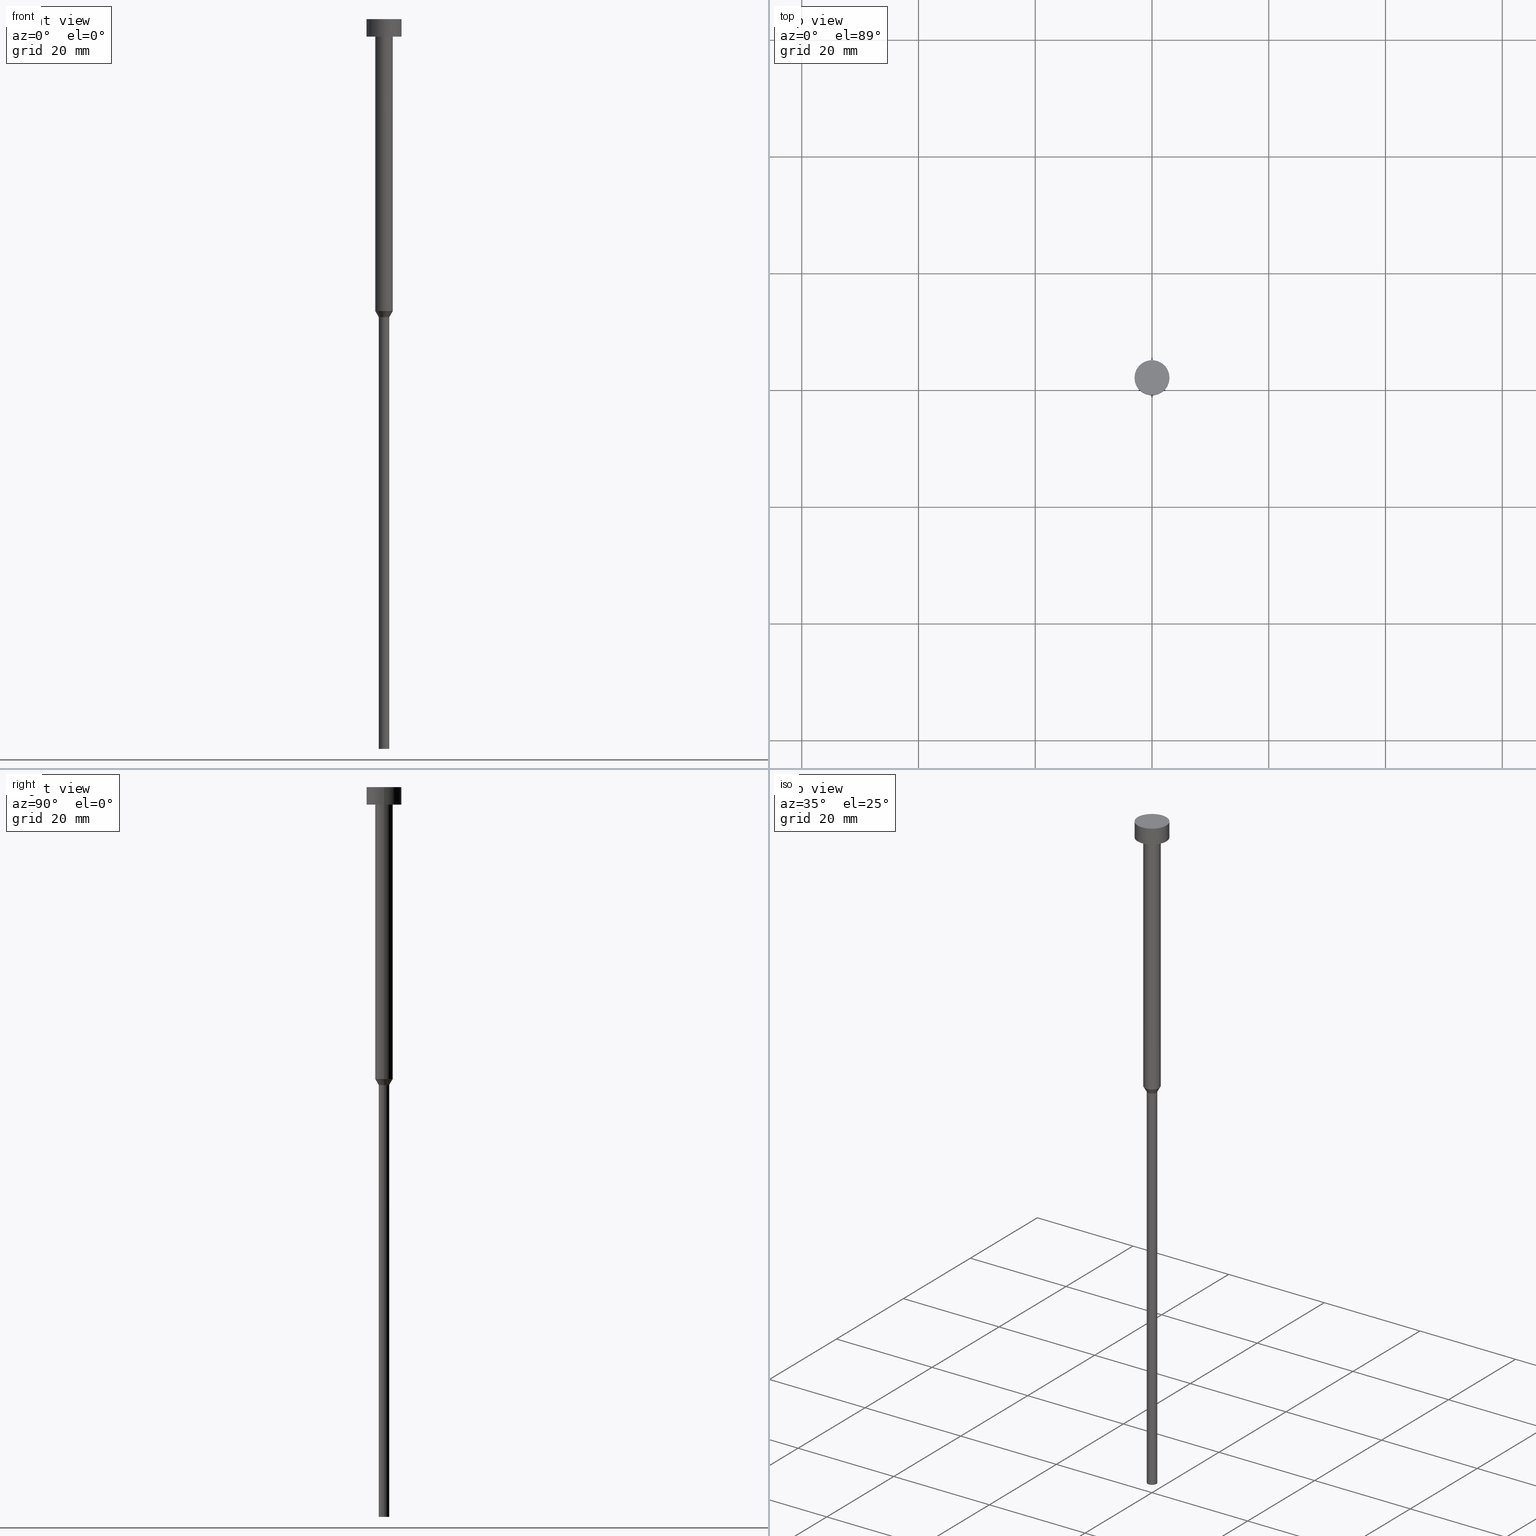
[diagram: canonical four-view strip — front | top / right | iso, engineering-drawing reading convention]
A machine part, canonical four-view strip (front | top / right | iso — engineering-drawing reading convention). The complete STEP part file that produces these views, byte-faithful:
ISO-10303-21;
HEADER;
FILE_DESCRIPTION (( 'STEP AP203' ),
    '1' );
FILE_NAME ('a91e.STEP',
    '2023-02-13T10:04:14',
    ( '' ),
    ( '' ),
    'SwSTEP 2.0',
    'SolidWorks 2019',
    '' );
FILE_SCHEMA (( 'CONFIG_CONTROL_DESIGN' ));
ENDSEC;

DATA;
#1 = EDGE_LOOP ( 'NONE', ( #320, #274 ) ) ;
#2 = DIRECTION ( 'NONE',  ( 0.000000000000000000, -0.000000000000000000, 1.000000000000000000 ) ) ;
#3 = DIRECTION ( 'NONE',  ( 0.5000000000000002220, 0.000000000000000000, 0.8660254037844384856 ) ) ;
#4 = VERTEX_POINT ( 'NONE', #42 ) ;
#5 = EDGE_CURVE ( 'NONE', #187, #23, #146, .T. ) ;
#6 = CIRCLE ( 'NONE', #45, 0.9000000000000000222 ) ;
#7 = AXIS2_PLACEMENT_3D ( 'NONE', #168, #227, #299 ) ;
#8 = DIRECTION ( 'NONE',  ( 0.000000000000000000, 0.000000000000000000, -1.000000000000000000 ) ) ;
#9 = EDGE_CURVE ( 'NONE', #71, #23, #315, .T. ) ;
#10 = ORGANIZATION ( 'NEUR�EN�', 'NEUR�EN�', '' ) ;
#11 = PERSON_AND_ORGANIZATION_ROLE ( 'design_supplier' ) ;
#12 = CC_DESIGN_PERSON_AND_ORGANIZATION_ASSIGNMENT ( #325, #189, ( #43 ) ) ;
#13 = VERTEX_POINT ( 'NONE', #219 ) ;
#14 = ORIENTED_EDGE ( 'NONE', *, *, #95, .F. ) ;
#15 = CARTESIAN_POINT ( 'NONE',  ( 0.000000000000000000, 0.000000000000000000, -3.000000000000000888 ) ) ;
#16 = ADVANCED_BREP_SHAPE_REPRESENTATION ( 'a91e', ( #64, #341 ), #183 ) ;
#17 = EDGE_LOOP ( 'NONE', ( #46, #204, #164, #336 ) ) ;
#18 = APPROVAL_PERSON_ORGANIZATION ( #166, #130, #66 ) ;
#19 = ORIENTED_EDGE ( 'NONE', *, *, #95, .T. ) ;
#20 = PERSON_AND_ORGANIZATION ( #247, #10 ) ;
#21 = CARTESIAN_POINT ( 'NONE',  ( 0.000000000000000000, 0.000000000000000000, 0.000000000000000000 ) ) ;
#22 = CARTESIAN_POINT ( 'NONE',  ( -0.9000000000000000222, 1.102182119232617788E-16, -51.03923048454132783 ) ) ;
#23 = VERTEX_POINT ( 'NONE', #190 ) ;
#24 = CARTESIAN_POINT ( 'NONE',  ( 0.000000000000000000, 0.000000000000000000, -50.00000000000000000 ) ) ;
#25 = FACE_OUTER_BOUND ( 'NONE', #207, .T. ) ;
#26 = VERTEX_POINT ( 'NONE', #136 ) ;
#27 = FACE_OUTER_BOUND ( 'NONE', #115, .T. ) ;
#28 = CARTESIAN_POINT ( 'NONE',  ( 0.000000000000000000, 0.000000000000000000, 0.000000000000000000 ) ) ;
#29 = COORDINATED_UNIVERSAL_TIME_OFFSET ( 1, 0, .AHEAD. ) ;
#30 = CIRCLE ( 'NONE', #261, 3.000000000000000000 ) ;
#31 = COORDINATED_UNIVERSAL_TIME_OFFSET ( 1, 0, .AHEAD. ) ;
#32 = CYLINDRICAL_SURFACE ( 'NONE', #7, 0.9000000000000000222 ) ;
#33 = SECURITY_CLASSIFICATION_LEVEL ( 'unclassified' ) ;
#34 = ORIENTED_EDGE ( 'NONE', *, *, #56, .F. ) ;
#35 = DIRECTION ( 'NONE',  ( 1.000000000000000000, 0.000000000000000000, 0.000000000000000000 ) ) ;
#36 = CALENDAR_DATE ( 2023, 13, 2 ) ;
#37 = LOCAL_TIME ( 11, 4, 14.00000000000000000, #298 ) ;
#38 = ADVANCED_FACE ( 'NONE', ( #158 ), #328, .T. ) ;
#39 = LINE ( 'NONE', #65, #124 ) ;
#40 = APPLICATION_CONTEXT ( 'configuration controlled 3d designs of mechanical parts and assemblies' ) ;
#41 = VECTOR ( 'NONE', #309, 1000.000000000000000 ) ;
#42 = CARTESIAN_POINT ( 'NONE',  ( -3.000000000000000000, 3.673940397442059868E-16, -3.673940397442059868E-16 ) ) ;
#43 = PRODUCT ( 'a91e', 'a91e', '', ( #103 ) ) ;
#44 = ORIENTED_EDGE ( 'NONE', *, *, #9, .T. ) ;
#45 = AXIS2_PLACEMENT_3D ( 'NONE', #134, #188, #108 ) ;
#46 = ORIENTED_EDGE ( 'NONE', *, *, #104, .F. ) ;
#47 = AXIS2_PLACEMENT_3D ( 'NONE', #159, #271, #59 ) ;
#48 = UNCERTAINTY_MEASURE_WITH_UNIT (LENGTH_MEASURE( 1.000000000000000082E-05 ), #220, 'distance_accuracy_value', 'NONE');
#49 = CC_DESIGN_PERSON_AND_ORGANIZATION_ASSIGNMENT ( #20, #176, ( #342 ) ) ;
#50 =( NAMED_UNIT ( * ) PLANE_ANGLE_UNIT ( ) SI_UNIT ( $, .RADIAN. ) );
#51 = CARTESIAN_POINT ( 'NONE',  ( 0.000000000000000000, 0.000000000000000000, -51.03923048454132783 ) ) ;
#52 = DIRECTION ( 'NONE',  ( 1.000000000000000000, 0.000000000000000000, 0.000000000000000000 ) ) ;
#53 = APPROVAL_ROLE ( '' ) ;
#54 = DIRECTION ( 'NONE',  ( -0.000000000000000000, -0.000000000000000000, 1.000000000000000000 ) ) ;
#55 = COORDINATED_UNIVERSAL_TIME_OFFSET ( 1, 0, .AHEAD. ) ;
#56 = EDGE_CURVE ( 'NONE', #70, #267, #80, .T. ) ;
#57 = CONICAL_SURFACE ( 'NONE', #337, 1.500000000000000000, 0.5235987755982991487 ) ;
#58 = DIRECTION ( 'NONE',  ( 1.000000000000000000, 0.000000000000000000, 0.000000000000000000 ) ) ;
#59 = DIRECTION ( 'NONE',  ( 1.000000000000000000, 0.000000000000000000, 0.000000000000000000 ) ) ;
#60 = ORIENTED_EDGE ( 'NONE', *, *, #171, .F. ) ;
#61 = DIRECTION ( 'NONE',  ( 1.000000000000000000, 0.000000000000000000, 0.000000000000000000 ) ) ;
#62 = CALENDAR_DATE ( 2023, 13, 2 ) ;
#63 = DESIGN_CONTEXT ( 'detailed design', #40, 'design' ) ;
#64 = MANIFOLD_SOLID_BREP ( 'Rotovat1', #93 ) ;
#65 = CARTESIAN_POINT ( 'NONE',  ( -1.500000000000000000, 1.836970198721029934E-16, -50.00000000000000000 ) ) ;
#66 = APPROVAL_ROLE ( '' ) ;
#67 = EDGE_CURVE ( 'NONE', #291, #26, #182, .T. ) ;
#68 = CIRCLE ( 'NONE', #198, 1.500000000000000000 ) ;
#69 = ORIENTED_EDGE ( 'NONE', *, *, #78, .T. ) ;
#70 = VERTEX_POINT ( 'NONE', #84 ) ;
#71 = VERTEX_POINT ( 'NONE', #22 ) ;
#72 = EDGE_CURVE ( 'NONE', #13, #117, #68, .T. ) ;
#73 = DIRECTION ( 'NONE',  ( 1.000000000000000000, 0.000000000000000000, 0.000000000000000000 ) ) ;
#74 = PRODUCT_DEFINITION_SHAPE ( 'NONE', 'NONE',  #342 ) ;
#75 = LINE ( 'NONE', #174, #316 ) ;
#76 = DIRECTION ( 'NONE',  ( -0.000000000000000000, -0.000000000000000000, 1.000000000000000000 ) ) ;
#77 = DIRECTION ( 'NONE',  ( -0.000000000000000000, -0.000000000000000000, 1.000000000000000000 ) ) ;
#78 = EDGE_CURVE ( 'NONE', #23, #71, #98, .T. ) ;
#79 = CARTESIAN_POINT ( 'NONE',  ( 0.000000000000000000, 0.000000000000000000, 0.000000000000000000 ) ) ;
#80 = CIRCLE ( 'NONE', #347, 3.000000000000000000 ) ;
#81 = VECTOR ( 'NONE', #100, 1000.000000000000000 ) ;
#82 = COORDINATED_UNIVERSAL_TIME_OFFSET ( 1, 0, .AHEAD. ) ;
#83 = PLANE ( 'NONE',  #236 ) ;
#84 = CARTESIAN_POINT ( 'NONE',  ( 3.000000000000000000, 0.000000000000000000, -3.000000000000000888 ) ) ;
#85 = CARTESIAN_POINT ( 'NONE',  ( 0.000000000000000000, 0.000000000000000000, -50.00000000000000000 ) ) ;
#86 = CARTESIAN_POINT ( 'NONE',  ( 0.000000000000000000, 0.000000000000000000, -3.000000000000000888 ) ) ;
#87 = LOCAL_TIME ( 11, 4, 14.00000000000000000, #29 ) ;
#88 = FACE_OUTER_BOUND ( 'NONE', #217, .T. ) ;
#89 = CARTESIAN_POINT ( 'NONE',  ( 1.500000000000000000, 0.000000000000000000, -50.00000000000000000 ) ) ;
#90 = PERSON_AND_ORGANIZATION ( #247, #10 ) ;
#91 = CC_DESIGN_PERSON_AND_ORGANIZATION_ASSIGNMENT ( #197, #260, ( #173 ) ) ;
#92 = PRODUCT_RELATED_PRODUCT_CATEGORY ( 'detail', '', ( #43 ) ) ;
#93 = CLOSED_SHELL ( 'NONE', ( #256, #352, #311, #195, #264, #226, #160, #228, #144, #154, #38 ) ) ;
#94 = DIRECTION ( 'NONE',  ( -0.000000000000000000, -0.000000000000000000, 1.000000000000000000 ) ) ;
#95 = EDGE_CURVE ( 'NONE', #26, #291, #106, .T. ) ;
#96 = ORIENTED_EDGE ( 'NONE', *, *, #72, .F. ) ;
#97 = APPROVAL_STATUS ( 'not_yet_approved' ) ;
#98 = CIRCLE ( 'NONE', #284, 0.9000000000000000222 ) ;
#99 = ORIENTED_EDGE ( 'NONE', *, *, #209, .F. ) ;
#100 = DIRECTION ( 'NONE',  ( -0.000000000000000000, -0.000000000000000000, 1.000000000000000000 ) ) ;
#101 = CARTESIAN_POINT ( 'NONE',  ( 0.000000000000000000, 0.000000000000000000, 0.000000000000000000 ) ) ;
#102 = DIRECTION ( 'NONE',  ( -0.000000000000000000, -0.000000000000000000, 1.000000000000000000 ) ) ;
#103 = MECHANICAL_CONTEXT ( 'NONE', #343, 'mechanical' ) ;
#104 = EDGE_CURVE ( 'NONE', #110, #71, #132, .T. ) ;
#105 = ORIENTED_EDGE ( 'NONE', *, *, #292, .F. ) ;
#106 = CIRCLE ( 'NONE', #122, 1.500000000000000000 ) ;
#107 = CYLINDRICAL_SURFACE ( 'NONE', #202, 1.500000000000000000 ) ;
#108 = DIRECTION ( 'NONE',  ( 1.000000000000000000, 0.000000000000000000, 0.000000000000000000 ) ) ;
#109 = VECTOR ( 'NONE', #142, 1000.000000000000000 ) ;
#110 = VERTEX_POINT ( 'NONE', #249 ) ;
#111 = AXIS2_PLACEMENT_3D ( 'NONE', #241, #327, #184 ) ;
#112 = DIRECTION ( 'NONE',  ( -1.000000000000000000, 0.000000000000000000, -0.000000000000000000 ) ) ;
#113 = ORIENTED_EDGE ( 'NONE', *, *, #178, .F. ) ;
#114 = CARTESIAN_POINT ( 'NONE',  ( 0.9000000000000000222, 0.000000000000000000, -125.0000000000000000 ) ) ;
#115 = EDGE_LOOP ( 'NONE', ( #254, #225, #221, #105 ) ) ;
#116 = PERSON_AND_ORGANIZATION_ROLE ( 'creator' ) ;
#117 = VERTEX_POINT ( 'NONE', #275 ) ;
#118 = AXIS2_PLACEMENT_3D ( 'NONE', #15, #76, #319 ) ;
#119 = APPROVAL ( #272, 'NEUR�EN�' ) ;
#120 = ORIENTED_EDGE ( 'NONE', *, *, #234, .T. ) ;
#121 = DIRECTION ( 'NONE',  ( -0.000000000000000000, -0.000000000000000000, 1.000000000000000000 ) ) ;
#122 = AXIS2_PLACEMENT_3D ( 'NONE', #24, #54, #162 ) ;
#123 = EDGE_CURVE ( 'NONE', #187, #110, #6, .T. ) ;
#124 = VECTOR ( 'NONE', #126, 1000.000000000000227 ) ;
#125 = ORIENTED_EDGE ( 'NONE', *, *, #5, .F. ) ;
#126 = DIRECTION ( 'NONE',  ( -0.5000000000000002220, 6.123233995736768501E-17, 0.8660254037844384856 ) ) ;
#127 = CALENDAR_DATE ( 2023, 13, 2 ) ;
#128 = LOCAL_TIME ( 11, 4, 14.00000000000000000, #55 ) ;
#129 = CARTESIAN_POINT ( 'NONE',  ( -3.000000000000000000, 3.673940397442059868E-16, 0.000000000000000000 ) ) ;
#130 = APPROVAL ( #335, 'NEUR�EN�' ) ;
#131 = DIRECTION ( 'NONE',  ( 1.000000000000000000, 0.000000000000000000, 0.000000000000000000 ) ) ;
#132 = LINE ( 'NONE', #253, #340 ) ;
#133 = ORIENTED_EDGE ( 'NONE', *, *, #123, .F. ) ;
#134 = CARTESIAN_POINT ( 'NONE',  ( 0.000000000000000000, 0.000000000000000000, -125.0000000000000000 ) ) ;
#135 = DIRECTION ( 'NONE',  ( 0.000000000000000000, 0.000000000000000000, 1.000000000000000000 ) ) ;
#136 = CARTESIAN_POINT ( 'NONE',  ( -1.500000000000000000, 1.836970198721029934E-16, -50.00000000000000000 ) ) ;
#137 = AXIS2_PLACEMENT_3D ( 'NONE', #21, #354, #35 ) ;
#138 = FACE_OUTER_BOUND ( 'NONE', #212, .T. ) ;
#139 = AXIS2_PLACEMENT_3D ( 'NONE', #165, #2, #307 ) ;
#140 = DATE_AND_TIME ( #36, #172 ) ;
#141 = AXIS2_PLACEMENT_3D ( 'NONE', #85, #242, #329 ) ;
#142 = DIRECTION ( 'NONE',  ( -0.000000000000000000, -0.000000000000000000, 1.000000000000000000 ) ) ;
#143 = ORIENTED_EDGE ( 'NONE', *, *, #283, .F. ) ;
#144 = ADVANCED_FACE ( 'NONE', ( #331, #88 ), #308, .T. ) ;
#145 = AXIS2_PLACEMENT_3D ( 'NONE', #233, #345, #73 ) ;
#146 = LINE ( 'NONE', #265, #266 ) ;
#147 = DIRECTION ( 'NONE',  ( 1.000000000000000000, 0.000000000000000000, 0.000000000000000000 ) ) ;
#148 = CC_DESIGN_PERSON_AND_ORGANIZATION_ASSIGNMENT ( #90, #116, ( #306 ) ) ;
#149 = CARTESIAN_POINT ( 'NONE',  ( 0.000000000000000000, 0.000000000000000000, -125.0000000000000000 ) ) ;
#150 = ORIENTED_EDGE ( 'NONE', *, *, #178, .T. ) ;
#151 = CYLINDRICAL_SURFACE ( 'NONE', #137, 3.000000000000000000 ) ;
#152 = ORIENTED_EDGE ( 'NONE', *, *, #67, .T. ) ;
#153 = APPLICATION_PROTOCOL_DEFINITION ( 'international standard', 'config_control_design', 1994, #343 ) ;
#154 = ADVANCED_FACE ( 'NONE', ( #206 ), #318, .T. ) ;
#155 = CARTESIAN_POINT ( 'NONE',  ( 0.000000000000000000, 0.000000000000000000, -50.00000000000000000 ) ) ;
#156 = CIRCLE ( 'NONE', #353, 3.000000000000000000 ) ;
#157 = CYLINDRICAL_SURFACE ( 'NONE', #47, 1.500000000000000000 ) ;
#158 = FACE_OUTER_BOUND ( 'NONE', #294, .T. ) ;
#159 = CARTESIAN_POINT ( 'NONE',  ( 0.000000000000000000, 0.000000000000000000, 0.000000000000000000 ) ) ;
#160 = ADVANCED_FACE ( 'NONE', ( #333 ), #57, .T. ) ;
#161 = DIRECTION ( 'NONE',  ( 1.000000000000000000, 0.000000000000000000, 0.000000000000000000 ) ) ;
#162 = DIRECTION ( 'NONE',  ( 1.000000000000000000, 0.000000000000000000, 0.000000000000000000 ) ) ;
#163 = CALENDAR_DATE ( 2023, 13, 2 ) ;
#164 = ORIENTED_EDGE ( 'NONE', *, *, #5, .T. ) ;
#165 = CARTESIAN_POINT ( 'NONE',  ( 0.000000000000000000, 0.000000000000000000, -1.836970198721029934E-16 ) ) ;
#166 = PERSON_AND_ORGANIZATION ( #247, #10 ) ;
#167 = PERSON_AND_ORGANIZATION ( #247, #10 ) ;
#168 = CARTESIAN_POINT ( 'NONE',  ( 0.000000000000000000, 0.000000000000000000, 0.000000000000000000 ) ) ;
#169 = CIRCLE ( 'NONE', #145, 3.000000000000000000 ) ;
#170 = ORIENTED_EDGE ( 'NONE', *, *, #123, .T. ) ;
#171 = EDGE_CURVE ( 'NONE', #267, #4, #302, .T. ) ;
#172 = LOCAL_TIME ( 11, 4, 14.00000000000000000, #31 ) ;
#173 = SECURITY_CLASSIFICATION ( '', '', #33 ) ;
#174 = CARTESIAN_POINT ( 'NONE',  ( 1.500000000000000000, 0.000000000000000000, 0.000000000000000000 ) ) ;
#175 = AXIS2_PLACEMENT_3D ( 'NONE', #149, #293, #147 ) ;
#176 = PERSON_AND_ORGANIZATION_ROLE ( 'creator' ) ;
#177 = DIRECTION ( 'NONE',  ( 1.000000000000000000, 0.000000000000000000, 0.000000000000000000 ) ) ;
#178 = EDGE_CURVE ( 'NONE', #267, #70, #169, .T. ) ;
#179 = APPROVAL_DATE_TIME ( #351, #119 ) ;
#180 = CARTESIAN_POINT ( 'NONE',  ( 0.000000000000000000, 0.000000000000000000, -3.000000000000000888 ) ) ;
#181 = LINE ( 'NONE', #321, #41 ) ;
#182 = CIRCLE ( 'NONE', #235, 1.500000000000000000 ) ;
#183 =( GEOMETRIC_REPRESENTATION_CONTEXT ( 3 ) GLOBAL_UNCERTAINTY_ASSIGNED_CONTEXT ( ( #48 ) ) GLOBAL_UNIT_ASSIGNED_CONTEXT ( ( #220, #50, #355 ) ) REPRESENTATION_CONTEXT ( 'NONE', 'WORKASPACE' ) );
#184 = DIRECTION ( 'NONE',  ( 1.000000000000000000, 0.000000000000000000, 0.000000000000000000 ) ) ;
#185 = LINE ( 'NONE', #208, #81 ) ;
#186 = EDGE_CURVE ( 'NONE', #291, #13, #75, .T. ) ;
#187 = VERTEX_POINT ( 'NONE', #114 ) ;
#188 = DIRECTION ( 'NONE',  ( -0.000000000000000000, -0.000000000000000000, 1.000000000000000000 ) ) ;
#189 = PERSON_AND_ORGANIZATION_ROLE ( 'design_owner' ) ;
#190 = CARTESIAN_POINT ( 'NONE',  ( 0.9000000000000000222, 0.000000000000000000, -51.03923048454132783 ) ) ;
#191 = CALENDAR_DATE ( 2023, 13, 2 ) ;
#192 = SHAPE_DEFINITION_REPRESENTATION ( #74, #16 ) ;
#193 = ORIENTED_EDGE ( 'NONE', *, *, #346, .F. ) ;
#194 = VECTOR ( 'NONE', #3, 1000.000000000000227 ) ;
#195 = ADVANCED_FACE ( 'NONE', ( #252 ), #32, .T. ) ;
#196 = EDGE_LOOP ( 'NONE', ( #60, #150, #239, #99 ) ) ;
#197 = PERSON_AND_ORGANIZATION ( #247, #10 ) ;
#198 = AXIS2_PLACEMENT_3D ( 'NONE', #86, #102, #58 ) ;
#199 = CIRCLE ( 'NONE', #118, 1.500000000000000000 ) ;
#200 = EDGE_CURVE ( 'NONE', #110, #187, #295, .T. ) ;
#201 = ORIENTED_EDGE ( 'NONE', *, *, #323, .F. ) ;
#202 = AXIS2_PLACEMENT_3D ( 'NONE', #101, #94, #161 ) ;
#203 = CARTESIAN_POINT ( 'NONE',  ( -3.000000000000000000, 3.673940397442059868E-16, -3.000000000000000888 ) ) ;
#204 = ORIENTED_EDGE ( 'NONE', *, *, #200, .T. ) ;
#205 = ORIENTED_EDGE ( 'NONE', *, *, #67, .F. ) ;
#206 = FACE_OUTER_BOUND ( 'NONE', #196, .T. ) ;
#207 = EDGE_LOOP ( 'NONE', ( #152, #263, #96, #243 ) ) ;
#208 = CARTESIAN_POINT ( 'NONE',  ( 3.000000000000000000, 0.000000000000000000, 0.000000000000000000 ) ) ;
#209 = EDGE_CURVE ( 'NONE', #4, #268, #156, .T. ) ;
#210 = APPROVAL_PERSON_ORGANIZATION ( #224, #119, #305 ) ;
#211 = CARTESIAN_POINT ( 'NONE',  ( 0.000000000000000000, 0.000000000000000000, -3.673940397442059868E-16 ) ) ;
#212 = EDGE_LOOP ( 'NONE', ( #133, #303 ) ) ;
#213 = FACE_OUTER_BOUND ( 'NONE', #289, .T. ) ;
#214 = FACE_OUTER_BOUND ( 'NONE', #312, .T. ) ;
#215 = DIRECTION ( 'NONE',  ( 1.000000000000000000, 0.000000000000000000, 0.000000000000000000 ) ) ;
#216 = CARTESIAN_POINT ( 'NONE',  ( 0.000000000000000000, 0.000000000000000000, -51.03923048454132783 ) ) ;
#217 = EDGE_LOOP ( 'NONE', ( #34, #113 ) ) ;
#218 = APPROVAL ( #97, 'NEUR�EN�' ) ;
#219 = CARTESIAN_POINT ( 'NONE',  ( 1.500000000000000000, 0.000000000000000000, -3.000000000000000888 ) ) ;
#220 =( LENGTH_UNIT ( ) NAMED_UNIT ( * ) SI_UNIT ( .MILLI., .METRE. ) );
#221 = ORIENTED_EDGE ( 'NONE', *, *, #234, .F. ) ;
#222 = AXIS2_PLACEMENT_3D ( 'NONE', #79, #296, #285 ) ;
#223 = CC_DESIGN_SECURITY_CLASSIFICATION ( #173, ( #306 ) ) ;
#224 = PERSON_AND_ORGANIZATION ( #247, #10 ) ;
#225 = ORIENTED_EDGE ( 'NONE', *, *, #171, .T. ) ;
#226 = ADVANCED_FACE ( 'NONE', ( #232 ), #344, .T. ) ;
#227 = DIRECTION ( 'NONE',  ( -0.000000000000000000, -0.000000000000000000, 1.000000000000000000 ) ) ;
#228 = ADVANCED_FACE ( 'NONE', ( #214 ), #107, .T. ) ;
#229 = DATE_AND_TIME ( #191, #87 ) ;
#230 = DIRECTION ( 'NONE',  ( 0.000000000000000000, 0.000000000000000000, -1.000000000000000000 ) ) ;
#231 = AXIS2_PLACEMENT_3D ( 'NONE', #277, #8, #112 ) ;
#232 = FACE_OUTER_BOUND ( 'NONE', #17, .T. ) ;
#233 = CARTESIAN_POINT ( 'NONE',  ( 0.000000000000000000, 0.000000000000000000, -3.000000000000000888 ) ) ;
#234 = EDGE_CURVE ( 'NONE', #268, #4, #30, .T. ) ;
#235 = AXIS2_PLACEMENT_3D ( 'NONE', #155, #270, #61 ) ;
#236 = AXIS2_PLACEMENT_3D ( 'NONE', #313, #230, #339 ) ;
#237 = CC_DESIGN_DATE_AND_TIME_ASSIGNMENT ( #140, #258, ( #173 ) ) ;
#238 = APPLICATION_PROTOCOL_DEFINITION ( 'international standard', 'config_control_design', 1994, #40 ) ;
#239 = ORIENTED_EDGE ( 'NONE', *, *, #292, .T. ) ;
#240 = LINE ( 'NONE', #245, #194 ) ;
#241 = CARTESIAN_POINT ( 'NONE',  ( 0.000000000000000000, 0.000000000000000000, 0.000000000000000000 ) ) ;
#242 = DIRECTION ( 'NONE',  ( -0.000000000000000000, -0.000000000000000000, 1.000000000000000000 ) ) ;
#243 = ORIENTED_EDGE ( 'NONE', *, *, #186, .F. ) ;
#244 = DIRECTION ( 'NONE',  ( -0.000000000000000000, -0.000000000000000000, 1.000000000000000000 ) ) ;
#245 = CARTESIAN_POINT ( 'NONE',  ( 1.500000000000000000, 0.000000000000000000, -50.00000000000000000 ) ) ;
#246 = EDGE_LOOP ( 'NONE', ( #143, #44, #310, #14 ) ) ;
#247 = PERSON ( 'NEUR�EN�', 'NEUR�EN�', 'NEUR�EN�', ('NEUR�EN�'), ('NEUR�EN�'), ('NEUR�EN�') ) ;
#248 = CARTESIAN_POINT ( 'NONE',  ( 0.000000000000000000, 0.000000000000000000, -50.00000000000000000 ) ) ;
#249 = CARTESIAN_POINT ( 'NONE',  ( -0.9000000000000000222, 1.102182119232617788E-16, -125.0000000000000000 ) ) ;
#250 = DIRECTION ( 'NONE',  ( 1.000000000000000000, 0.000000000000000000, 0.000000000000000000 ) ) ;
#251 = ORIENTED_EDGE ( 'NONE', *, *, #78, .F. ) ;
#252 = FACE_OUTER_BOUND ( 'NONE', #326, .T. ) ;
#253 = CARTESIAN_POINT ( 'NONE',  ( -0.9000000000000000222, 1.102182119232617788E-16, 0.000000000000000000 ) ) ;
#254 = ORIENTED_EDGE ( 'NONE', *, *, #56, .T. ) ;
#255 = APPROVAL_DATE_TIME ( #281, #218 ) ;
#256 = ADVANCED_FACE ( 'NONE', ( #27 ), #151, .T. ) ;
#257 = DIRECTION ( 'NONE',  ( -0.000000000000000000, -0.000000000000000000, 1.000000000000000000 ) ) ;
#258 = DATE_TIME_ROLE ( 'classification_date' ) ;
#259 = AXIS2_PLACEMENT_3D ( 'NONE', #51, #269, #215 ) ;
#260 = PERSON_AND_ORGANIZATION_ROLE ( 'classification_officer' ) ;
#261 = AXIS2_PLACEMENT_3D ( 'NONE', #276, #257, #131 ) ;
#262 = DIRECTION ( 'NONE',  ( 1.000000000000000000, 0.000000000000000000, 0.000000000000000000 ) ) ;
#263 = ORIENTED_EDGE ( 'NONE', *, *, #346, .T. ) ;
#264 = ADVANCED_FACE ( 'NONE', ( #138 ), #83, .T. ) ;
#265 = CARTESIAN_POINT ( 'NONE',  ( 0.9000000000000000222, 0.000000000000000000, 0.000000000000000000 ) ) ;
#266 = VECTOR ( 'NONE', #121, 1000.000000000000000 ) ;
#267 = VERTEX_POINT ( 'NONE', #203 ) ;
#268 = VERTEX_POINT ( 'NONE', #349 ) ;
#269 = DIRECTION ( 'NONE',  ( -0.000000000000000000, -0.000000000000000000, 1.000000000000000000 ) ) ;
#270 = DIRECTION ( 'NONE',  ( -0.000000000000000000, -0.000000000000000000, 1.000000000000000000 ) ) ;
#271 = DIRECTION ( 'NONE',  ( -0.000000000000000000, -0.000000000000000000, 1.000000000000000000 ) ) ;
#272 = APPROVAL_STATUS ( 'not_yet_approved' ) ;
#273 = DIRECTION ( 'NONE',  ( -0.000000000000000000, -0.000000000000000000, 1.000000000000000000 ) ) ;
#274 = ORIENTED_EDGE ( 'NONE', *, *, #288, .T. ) ;
#275 = CARTESIAN_POINT ( 'NONE',  ( -1.500000000000000000, 1.836970198721029934E-16, -3.000000000000000888 ) ) ;
#276 = CARTESIAN_POINT ( 'NONE',  ( 0.000000000000000000, 0.000000000000000000, -3.673940397442059868E-16 ) ) ;
#277 = CARTESIAN_POINT ( 'NONE',  ( 0.000000000000000000, -3.000000000000000000, -3.000000000000000888 ) ) ;
#278 = DATE_AND_TIME ( #163, #128 ) ;
#279 = ORIENTED_EDGE ( 'NONE', *, *, #283, .T. ) ;
#280 = CONICAL_SURFACE ( 'NONE', #141, 1.500000000000000000, 0.5235987755982991487 ) ;
#281 = DATE_AND_TIME ( #127, #37 ) ;
#282 = ORIENTED_EDGE ( 'NONE', *, *, #288, .F. ) ;
#283 = EDGE_CURVE ( 'NONE', #71, #26, #39, .T. ) ;
#284 = AXIS2_PLACEMENT_3D ( 'NONE', #216, #324, #304 ) ;
#285 = DIRECTION ( 'NONE',  ( 1.000000000000000000, 0.000000000000000000, 0.000000000000000000 ) ) ;
#286 = CC_DESIGN_APPROVAL ( #130, ( #173 ) ) ;
#287 = ORIENTED_EDGE ( 'NONE', *, *, #186, .T. ) ;
#288 = EDGE_CURVE ( 'NONE', #117, #13, #199, .T. ) ;
#289 = EDGE_LOOP ( 'NONE', ( #69, #279, #205, #201 ) ) ;
#290 = CC_DESIGN_APPROVAL ( #119, ( #342 ) ) ;
#291 = VERTEX_POINT ( 'NONE', #89 ) ;
#292 = EDGE_CURVE ( 'NONE', #70, #268, #185, .T. ) ;
#293 = DIRECTION ( 'NONE',  ( -0.000000000000000000, -0.000000000000000000, 1.000000000000000000 ) ) ;
#294 = EDGE_LOOP ( 'NONE', ( #120, #297 ) ) ;
#295 = CIRCLE ( 'NONE', #175, 0.9000000000000000222 ) ;
#296 = DIRECTION ( 'NONE',  ( -0.000000000000000000, -0.000000000000000000, 1.000000000000000000 ) ) ;
#297 = ORIENTED_EDGE ( 'NONE', *, *, #209, .T. ) ;
#298 = COORDINATED_UNIVERSAL_TIME_OFFSET ( 1, 0, .AHEAD. ) ;
#299 = DIRECTION ( 'NONE',  ( 1.000000000000000000, 0.000000000000000000, 0.000000000000000000 ) ) ;
#300 = DIRECTION ( 'NONE',  ( -0.000000000000000000, -0.000000000000000000, 1.000000000000000000 ) ) ;
#301 = DATE_TIME_ROLE ( 'creation_date' ) ;
#302 = LINE ( 'NONE', #129, #109 ) ;
#303 = ORIENTED_EDGE ( 'NONE', *, *, #200, .F. ) ;
#304 = DIRECTION ( 'NONE',  ( 1.000000000000000000, 0.000000000000000000, 0.000000000000000000 ) ) ;
#305 = APPROVAL_ROLE ( '' ) ;
#306 = PRODUCT_DEFINITION_FORMATION_WITH_SPECIFIED_SOURCE ( 'LIBOVOLN�', '', #43, .NOT_KNOWN. ) ;
#307 = DIRECTION ( 'NONE',  ( 1.000000000000000000, 0.000000000000000000, 0.000000000000000000 ) ) ;
#308 = PLANE ( 'NONE',  #231 ) ;
#309 = DIRECTION ( 'NONE',  ( -0.000000000000000000, -0.000000000000000000, 1.000000000000000000 ) ) ;
#310 = ORIENTED_EDGE ( 'NONE', *, *, #323, .T. ) ;
#311 = ADVANCED_FACE ( 'NONE', ( #213 ), #280, .T. ) ;
#312 = EDGE_LOOP ( 'NONE', ( #193, #19, #287, #282 ) ) ;
#313 = CARTESIAN_POINT ( 'NONE',  ( 0.000000000000000000, 0.000000000000000000, -125.0000000000000000 ) ) ;
#314 = ORIENTED_EDGE ( 'NONE', *, *, #104, .T. ) ;
#315 = CIRCLE ( 'NONE', #259, 0.9000000000000000222 ) ;
#316 = VECTOR ( 'NONE', #77, 1000.000000000000000 ) ;
#317 = CC_DESIGN_DATE_AND_TIME_ASSIGNMENT ( #278, #301, ( #342 ) ) ;
#318 = CYLINDRICAL_SURFACE ( 'NONE', #222, 3.000000000000000000 ) ;
#319 = DIRECTION ( 'NONE',  ( 1.000000000000000000, 0.000000000000000000, 0.000000000000000000 ) ) ;
#320 = ORIENTED_EDGE ( 'NONE', *, *, #72, .T. ) ;
#321 = CARTESIAN_POINT ( 'NONE',  ( -1.500000000000000000, 1.836970198721029934E-16, 0.000000000000000000 ) ) ;
#322 = DIRECTION ( 'NONE',  ( -0.000000000000000000, -0.000000000000000000, 1.000000000000000000 ) ) ;
#323 = EDGE_CURVE ( 'NONE', #23, #291, #240, .T. ) ;
#324 = DIRECTION ( 'NONE',  ( -0.000000000000000000, -0.000000000000000000, 1.000000000000000000 ) ) ;
#325 = PERSON_AND_ORGANIZATION ( #247, #10 ) ;
#326 = EDGE_LOOP ( 'NONE', ( #170, #314, #251, #125 ) ) ;
#327 = DIRECTION ( 'NONE',  ( -0.000000000000000000, -0.000000000000000000, 1.000000000000000000 ) ) ;
#328 = PLANE ( 'NONE',  #139 ) ;
#329 = DIRECTION ( 'NONE',  ( 1.000000000000000000, 0.000000000000000000, 0.000000000000000000 ) ) ;
#330 = APPROVAL_PERSON_ORGANIZATION ( #350, #218, #53 ) ;
#331 = FACE_BOUND ( 'NONE', #1, .T. ) ;
#332 = CC_DESIGN_PERSON_AND_ORGANIZATION_ASSIGNMENT ( #167, #11, ( #306 ) ) ;
#333 = FACE_OUTER_BOUND ( 'NONE', #246, .T. ) ;
#334 = APPROVAL_DATE_TIME ( #229, #130 ) ;
#335 = APPROVAL_STATUS ( 'not_yet_approved' ) ;
#336 = ORIENTED_EDGE ( 'NONE', *, *, #9, .F. ) ;
#337 = AXIS2_PLACEMENT_3D ( 'NONE', #248, #273, #177 ) ;
#338 = CC_DESIGN_APPROVAL ( #218, ( #306 ) ) ;
#339 = DIRECTION ( 'NONE',  ( -1.000000000000000000, 0.000000000000000000, -0.000000000000000000 ) ) ;
#340 = VECTOR ( 'NONE', #244, 1000.000000000000000 ) ;
#341 = AXIS2_PLACEMENT_3D ( 'NONE', #28, #135, #250 ) ;
#342 = PRODUCT_DEFINITION ( 'NEZN�M�', '', #306, #63 ) ;
#343 = APPLICATION_CONTEXT ( 'configuration controlled 3d designs of mechanical parts and assemblies' ) ;
#344 = CYLINDRICAL_SURFACE ( 'NONE', #111, 0.9000000000000000222 ) ;
#345 = DIRECTION ( 'NONE',  ( -0.000000000000000000, -0.000000000000000000, 1.000000000000000000 ) ) ;
#346 = EDGE_CURVE ( 'NONE', #26, #117, #181, .T. ) ;
#347 = AXIS2_PLACEMENT_3D ( 'NONE', #180, #300, #52 ) ;
#348 = LOCAL_TIME ( 11, 4, 14.00000000000000000, #82 ) ;
#349 = CARTESIAN_POINT ( 'NONE',  ( 3.000000000000000000, 0.000000000000000000, -3.673940397442059868E-16 ) ) ;
#350 = PERSON_AND_ORGANIZATION ( #247, #10 ) ;
#351 = DATE_AND_TIME ( #62, #348 ) ;
#352 = ADVANCED_FACE ( 'NONE', ( #25 ), #157, .T. ) ;
#353 = AXIS2_PLACEMENT_3D ( 'NONE', #211, #322, #262 ) ;
#354 = DIRECTION ( 'NONE',  ( -0.000000000000000000, -0.000000000000000000, 1.000000000000000000 ) ) ;
#355 =( NAMED_UNIT ( * ) SI_UNIT ( $, .STERADIAN. ) SOLID_ANGLE_UNIT ( ) );
ENDSEC;
END-ISO-10303-21;
